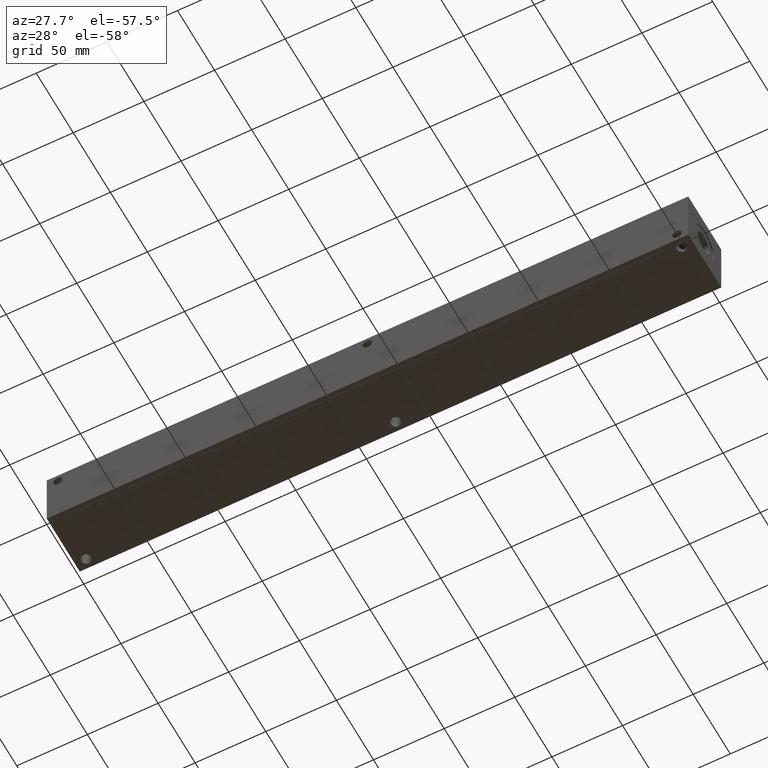
[diagram: clean part render]
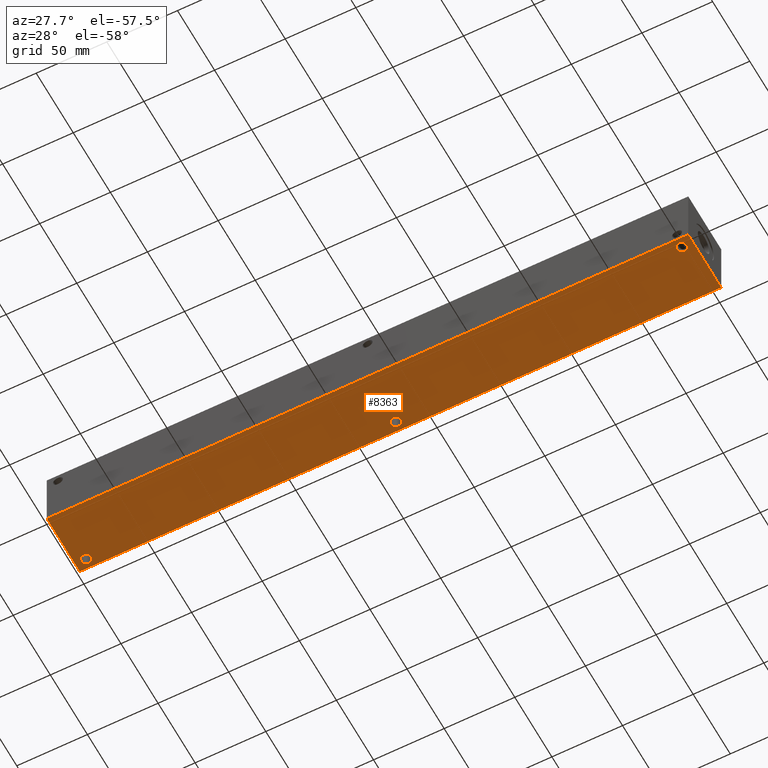
[diagram: same view with one face highlighted and labeled with its STEP entity id]
A machine part, auxiliary view. The second image highlights one B-rep face of the part: STEP entity #8363.
In plain terms, the highlighted planar face has unit normal (0, 0, 1).
Its self-contained STEP definition (entity closure, byte-faithful):
#171=CIRCLE('',#8644,3.5687);
#172=CIRCLE('',#8646,3.5687);
#173=CIRCLE('',#8648,3.5687);
#437=FACE_BOUND('',#1636,.T.);
#438=FACE_BOUND('',#1637,.T.);
#439=FACE_BOUND('',#1638,.T.);
#1128=FACE_OUTER_BOUND('',#1635,.T.);
#1635=EDGE_LOOP('',(#7398,#7399,#7400,#7401));
#1636=EDGE_LOOP('',(#7402));
#1637=EDGE_LOOP('',(#7403));
#1638=EDGE_LOOP('',(#7404));
#2381=LINE('',#14368,#3131);
#2384=LINE('',#14373,#3134);
#2386=LINE('',#14377,#3136);
#2388=LINE('',#14380,#3138);
#3131=VECTOR('',#10879,10.);
#3134=VECTOR('',#10884,10.);
#3136=VECTOR('',#10888,10.);
#3138=VECTOR('',#10892,10.);
#3716=VERTEX_POINT('',#13742);
#3717=VERTEX_POINT('',#13746);
#3718=VERTEX_POINT('',#13750);
#3921=VERTEX_POINT('',#14366);
#3922=VERTEX_POINT('',#14367);
#3923=VERTEX_POINT('',#14372);
#3924=VERTEX_POINT('',#14376);
#4784=EDGE_CURVE('',#3716,#3716,#171,.T.);
#4786=EDGE_CURVE('',#3717,#3717,#172,.T.);
#4788=EDGE_CURVE('',#3718,#3718,#173,.T.);
#5077=EDGE_CURVE('',#3921,#3922,#2381,.T.);
#5080=EDGE_CURVE('',#3923,#3921,#2384,.T.);
#5082=EDGE_CURVE('',#3924,#3923,#2386,.T.);
#5084=EDGE_CURVE('',#3922,#3924,#2388,.T.);
#7398=ORIENTED_EDGE('',*,*,#5084,.F.);
#7399=ORIENTED_EDGE('',*,*,#5077,.F.);
#7400=ORIENTED_EDGE('',*,*,#5080,.F.);
#7401=ORIENTED_EDGE('',*,*,#5082,.F.);
#7402=ORIENTED_EDGE('',*,*,#4784,.T.);
#7403=ORIENTED_EDGE('',*,*,#4786,.T.);
#7404=ORIENTED_EDGE('',*,*,#4788,.T.);
#7643=PLANE('',#8966);
#8363=ADVANCED_FACE('',(#1128,#437,#438,#439),#7643,.F.);
#8644=AXIS2_PLACEMENT_3D('',#13744,#10143,#10144);
#8646=AXIS2_PLACEMENT_3D('',#13748,#10148,#10149);
#8648=AXIS2_PLACEMENT_3D('',#13752,#10153,#10154);
#8966=AXIS2_PLACEMENT_3D('',#14382,#10895,#10896);
#10143=DIRECTION('center_axis',(0.,0.,1.));
#10144=DIRECTION('ref_axis',(1.,0.,0.));
#10148=DIRECTION('center_axis',(0.,0.,1.));
#10149=DIRECTION('ref_axis',(1.,0.,0.));
#10153=DIRECTION('center_axis',(0.,0.,1.));
#10154=DIRECTION('ref_axis',(1.,0.,0.));
#10879=DIRECTION('',(0.,-1.,0.));
#10884=DIRECTION('',(-1.,0.,0.));
#10888=DIRECTION('',(0.,1.,0.));
#10892=DIRECTION('',(1.,0.,0.));
#10895=DIRECTION('center_axis',(0.,0.,1.));
#10896=DIRECTION('ref_axis',(1.,0.,0.));
#13742=CARTESIAN_POINT('',(442.5061,6.35,0.));
#13744=CARTESIAN_POINT('Origin',(446.0748,6.35,0.));
#13746=CARTESIAN_POINT('',(4.3561,38.1,0.));
#13748=CARTESIAN_POINT('Origin',(7.9248,38.1,0.));
#13750=CARTESIAN_POINT('',(223.4565,38.1,0.));
#13752=CARTESIAN_POINT('Origin',(227.0252,38.1,0.));
#14366=CARTESIAN_POINT('',(0.,44.45,0.));
#14367=CARTESIAN_POINT('',(0.,0.,0.));
#14368=CARTESIAN_POINT('',(0.,44.45,0.));
#14372=CARTESIAN_POINT('',(454.025,44.45,0.));
#14373=CARTESIAN_POINT('',(454.025,44.45,0.));
#14376=CARTESIAN_POINT('',(454.025,0.,0.));
#14377=CARTESIAN_POINT('',(454.025,0.,0.));
#14380=CARTESIAN_POINT('',(0.,0.,0.));
#14382=CARTESIAN_POINT('Origin',(227.0125,22.225,0.));